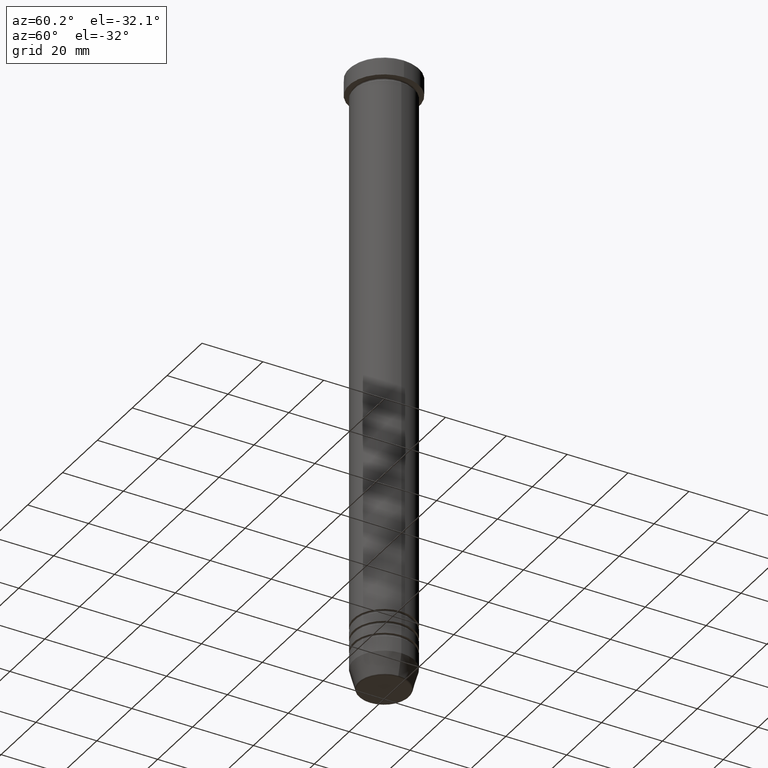
[diagram: clean part render]
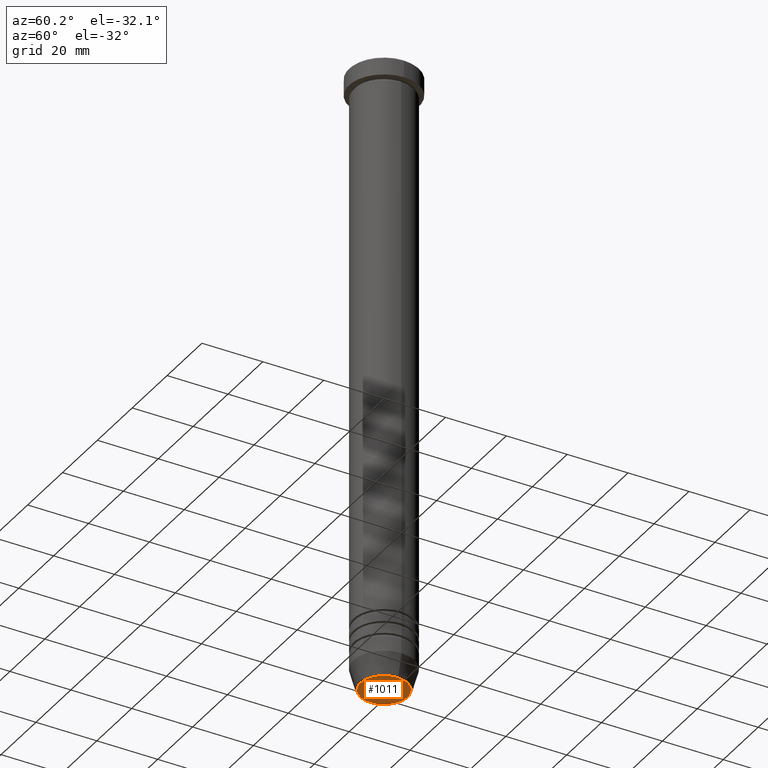
[diagram: same view with one face highlighted and labeled with its STEP entity id]
A machine part, auxiliary view. The second image highlights one B-rep face of the part: STEP entity #1011.
In plain terms, the highlighted planar face has unit normal (0, -0, 1).
Its self-contained STEP definition (entity closure, byte-faithful):
#10 = DIRECTION ( 'NONE',  ( 0.000000000000000000, 0.000000000000000000, -1.000000000000000000 ) ) ;
#126 = AXIS2_PLACEMENT_3D ( 'NONE', #804, #10, #544 ) ;
#241 = PLANE ( 'NONE',  #1094 ) ;
#331 = EDGE_CURVE ( 'NONE', #992, #774, #830, .T. ) ;
#472 = DIRECTION ( 'NONE',  ( 0.000000000000000000, 0.000000000000000000, -1.000000000000000000 ) ) ;
#544 = DIRECTION ( 'NONE',  ( 1.000000000000000000, 0.000000000000000000, 0.000000000000000000 ) ) ;
#593 = ORIENTED_EDGE ( 'NONE', *, *, #778, .T. ) ;
#715 = CARTESIAN_POINT ( 'NONE',  ( 7.740692158992662719, 0.000000000000000000, -206.0000000000000284 ) ) ;
#744 = CARTESIAN_POINT ( 'NONE',  ( 0.000000000000000000, 0.000000000000000000, -206.0000000000000284 ) ) ;
#753 = CARTESIAN_POINT ( 'NONE',  ( 0.000000000000000000, 1.794107560750872760E-14, -206.0000000000000284 ) ) ;
#774 = VERTEX_POINT ( 'NONE', #715 ) ;
#778 = EDGE_CURVE ( 'NONE', #774, #992, #816, .T. ) ;
#804 = CARTESIAN_POINT ( 'NONE',  ( 0.000000000000000000, 0.000000000000000000, -206.0000000000000284 ) ) ;
#816 = CIRCLE ( 'NONE', #126, 7.740692158992662719 ) ;
#830 = CIRCLE ( 'NONE', #986, 7.740692158992662719 ) ;
#837 = FACE_OUTER_BOUND ( 'NONE', #939, .T. ) ;
#838 = DIRECTION ( 'NONE',  ( 1.000000000000000000, 0.000000000000000000, 0.000000000000000000 ) ) ;
#841 = CARTESIAN_POINT ( 'NONE',  ( -7.740692158992662719, 9.775343368540043079E-16, -206.0000000000000284 ) ) ;
#939 = EDGE_LOOP ( 'NONE', ( #593, #1142 ) ) ;
#986 = AXIS2_PLACEMENT_3D ( 'NONE', #744, #472, #838 ) ;
#992 = VERTEX_POINT ( 'NONE', #841 ) ;
#1011 = ADVANCED_FACE ( 'NONE', ( #837 ), #241, .F. ) ;
#1034 = DIRECTION ( 'NONE',  ( 0.000000000000000000, -0.000000000000000000, 1.000000000000000000 ) ) ;
#1094 = AXIS2_PLACEMENT_3D ( 'NONE', #753, #1034, #1104 ) ;
#1104 = DIRECTION ( 'NONE',  ( 1.000000000000000000, 0.000000000000000000, 0.000000000000000000 ) ) ;
#1142 = ORIENTED_EDGE ( 'NONE', *, *, #331, .T. ) ;